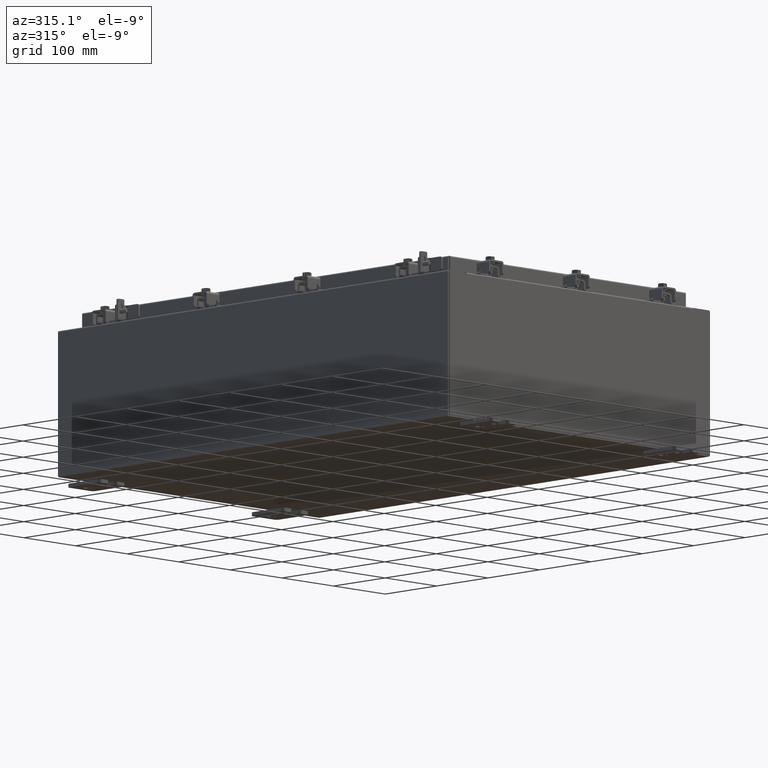
[diagram: clean part render]
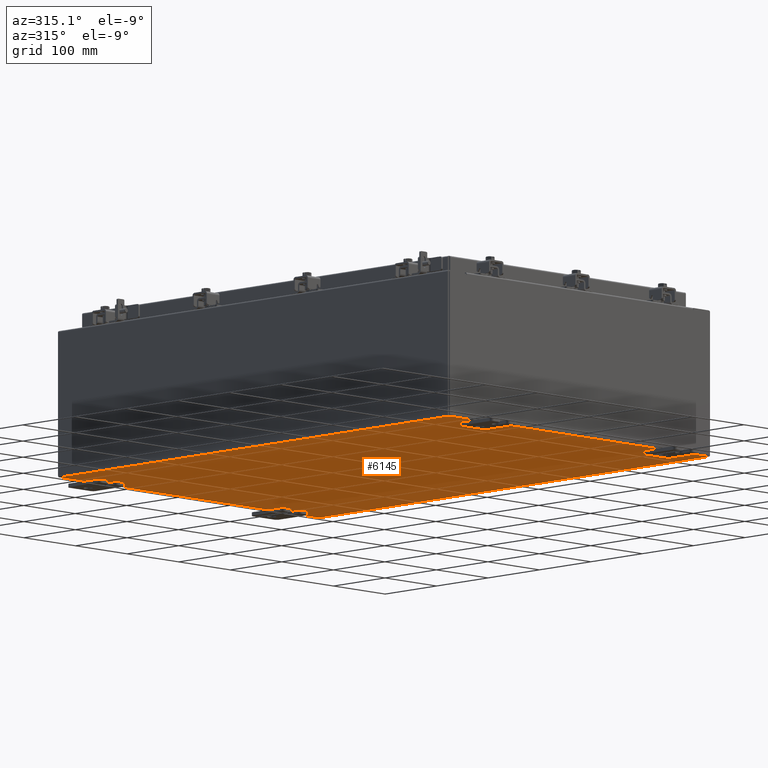
[diagram: same view with one face highlighted and labeled with its STEP entity id]
A machine part, auxiliary view. The second image highlights one B-rep face of the part: STEP entity #6145.
In plain terms, the highlighted planar face has unit normal (0, 0, -1).
Its self-contained STEP definition (entity closure, byte-faithful):
#1211 = AXIS2_PLACEMENT_3D ( 'NONE', #4861, #6615, #19157 ) ;
#1786 = CARTESIAN_POINT ( 'NONE',  ( -9.912300000000000100, 14.92530000000000500, -0.07470000000000000300 ) ) ;
#2195 = ORIENTED_EDGE ( 'NONE', *, *, #10078, .T. ) ;
#3058 = PLANE ( 'NONE',  #1211 ) ;
#3170 = LINE ( 'NONE', #22735, #12659 ) ;
#3902 = EDGE_LOOP ( 'NONE', ( #14582, #2195, #13876, #6397 ) ) ;
#4147 = VERTEX_POINT ( 'NONE', #6758 ) ;
#4861 = CARTESIAN_POINT ( 'NONE',  ( 0.0000000000000000000, 0.0000000000000000000, -0.07470000000000000300 ) ) ;
#5021 = CARTESIAN_POINT ( 'NONE',  ( -10.00000000000000000, 14.92530000000000500, -0.07470000000000000300 ) ) ;
#5945 = VERTEX_POINT ( 'NONE', #1786 ) ;
#6145 = ADVANCED_FACE ( 'NONE', ( #15061 ), #3058, .T. ) ;
#6397 = ORIENTED_EDGE ( 'NONE', *, *, #17895, .T. ) ;
#6615 = DIRECTION ( 'NONE',  ( 0.0000000000000000000, 0.0000000000000000000, -1.000000000000000000 ) ) ;
#6758 = CARTESIAN_POINT ( 'NONE',  ( 9.912300000000000100, -14.92529999999999600, -0.07470000000000000300 ) ) ;
#7966 = VERTEX_POINT ( 'NONE', #22674 ) ;
#8245 = CARTESIAN_POINT ( 'NONE',  ( 9.912300000000000100, 14.92530000000000500, -0.07469999999999994700 ) ) ;
#8489 = DIRECTION ( 'NONE',  ( 1.000000000000000000, 0.0000000000000000000, 0.0000000000000000000 ) ) ;
#9999 = VERTEX_POINT ( 'NONE', #8245 ) ;
#10078 = EDGE_CURVE ( 'NONE', #7966, #5945, #3170, .T. ) ;
#11040 = VECTOR ( 'NONE', #8489, 39.37007874015748100 ) ;
#11961 = DIRECTION ( 'NONE',  ( -0.0000000000000000000, 1.000000000000000000, -0.0000000000000000000 ) ) ;
#12151 = VECTOR ( 'NONE', #20968, 39.37007874015748100 ) ;
#12659 = VECTOR ( 'NONE', #11961, 39.37007874015748100 ) ;
#13876 = ORIENTED_EDGE ( 'NONE', *, *, #17375, .F. ) ;
#14582 = ORIENTED_EDGE ( 'NONE', *, *, #16675, .F. ) ;
#15061 = FACE_OUTER_BOUND ( 'NONE', #3902, .T. ) ;
#15710 = DIRECTION ( 'NONE',  ( -1.000000000000000000, -0.0000000000000000000, -0.0000000000000000000 ) ) ;
#16675 = EDGE_CURVE ( 'NONE', #7966, #4147, #20603, .T. ) ;
#17375 = EDGE_CURVE ( 'NONE', #9999, #5945, #17493, .T. ) ;
#17493 = LINE ( 'NONE', #5021, #22295 ) ;
#17895 = EDGE_CURVE ( 'NONE', #9999, #4147, #22844, .T. ) ;
#19157 = DIRECTION ( 'NONE',  ( -1.000000000000000000, 0.0000000000000000000, -0.0000000000000000000 ) ) ;
#19191 = CARTESIAN_POINT ( 'NONE',  ( -10.00000000000000000, -14.92529999999999600, -0.07470000000000000300 ) ) ;
#20603 = LINE ( 'NONE', #19191, #11040 ) ;
#20968 = DIRECTION ( 'NONE',  ( -0.0000000000000000000, -1.000000000000000000, -0.0000000000000000000 ) ) ;
#22295 = VECTOR ( 'NONE', #15710, 39.37007874015748100 ) ;
#22674 = CARTESIAN_POINT ( 'NONE',  ( -9.912300000000000100, -14.92529999999999600, -0.07469999999999994700 ) ) ;
#22689 = CARTESIAN_POINT ( 'NONE',  ( 9.912300000000000100, 14.92530000000000500, -0.07469999999999994700 ) ) ;
#22735 = CARTESIAN_POINT ( 'NONE',  ( -9.912300000000000100, -14.92529999999999600, -0.07469999999999994700 ) ) ;
#22844 = LINE ( 'NONE', #22689, #12151 ) ;